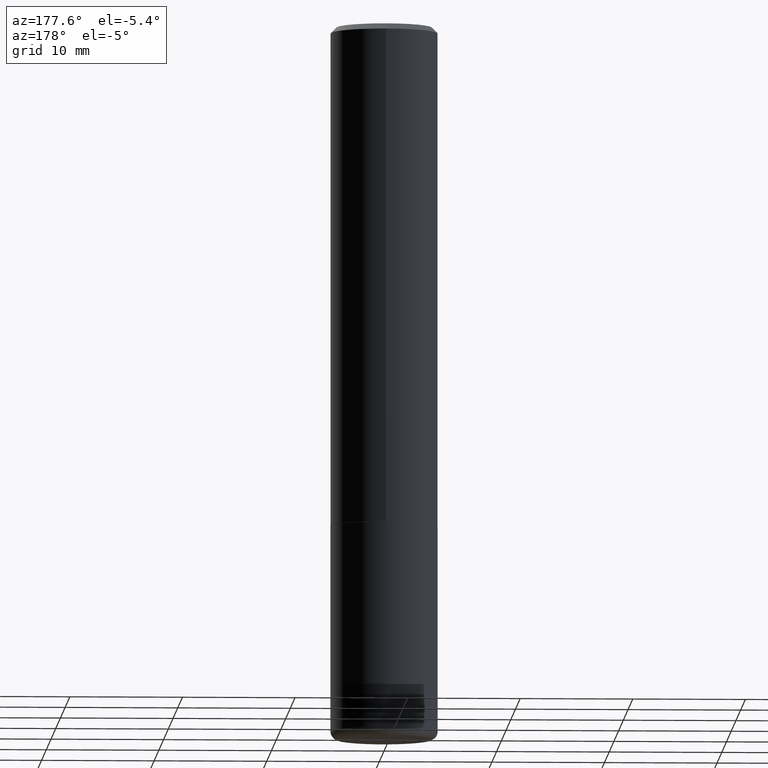
[diagram: clean part render]
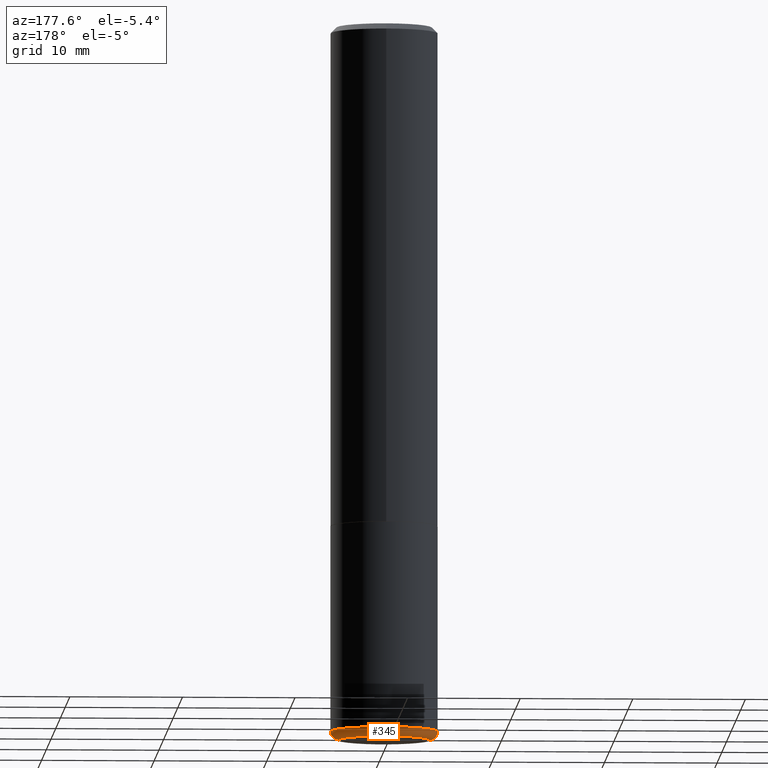
[diagram: same view with one face highlighted and labeled with its STEP entity id]
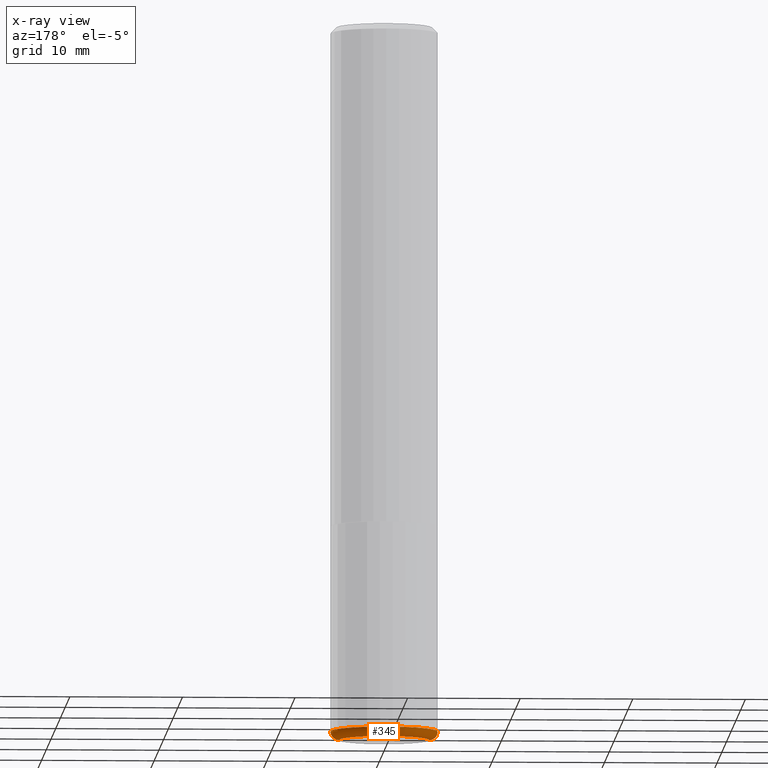
[diagram: x-ray of the same camera — body ghosted, the highlighted face saturated]
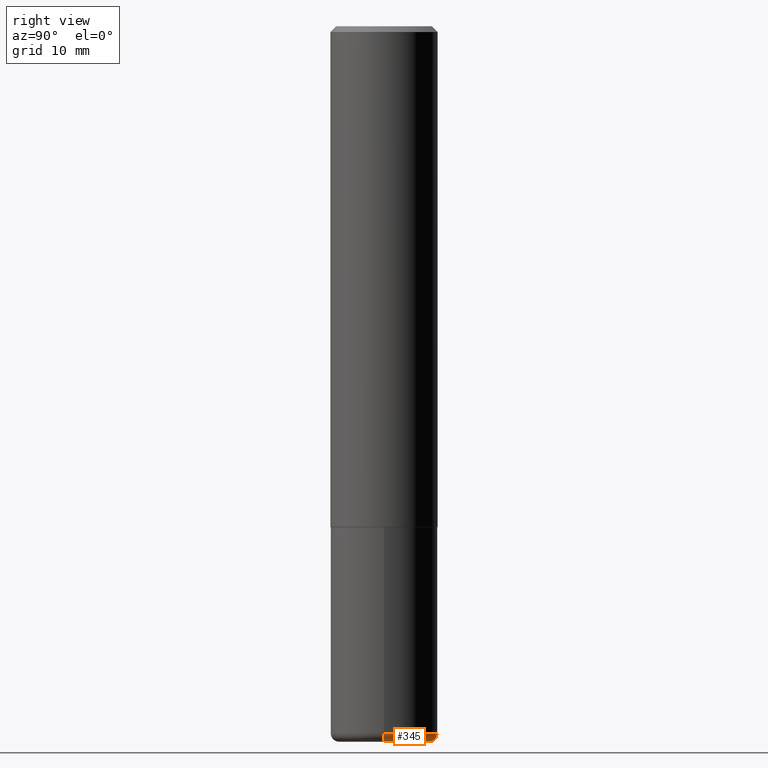
[diagram: same view with one face highlighted and labeled with its STEP entity id]
A machine part, auxiliary view. The second image highlights one B-rep face of the part: STEP entity #345.
The next image is the same camera in x-ray: the body ghosted, the highlighted face saturated — about 0% of this face is hidden behind the body in this view.
A second angle (right view) of the same face is appended — the face is thin or edge-on in the first view.
In plain terms, the highlighted toroidal blend (fillet) surface has major radius 4.0005 mm and minor (blend) radius 0.762 mm.
Its self-contained STEP definition (entity closure, byte-faithful):
#1 = DIRECTION ( 'NONE',  ( 7.105427357601001859E-15, 1.000000000000000000, -3.491481338843145583E-15 ) ) ;
#4 = ORIENTED_EDGE ( 'NONE', *, *, #375, .F. ) ;
#12 = EDGE_CURVE ( 'NONE', #286, #237, #184, .T. ) ;
#24 = DIRECTION ( 'NONE',  ( 1.000000000000000000, -6.982962677686269077E-15, 4.883557194083113462E-29 ) ) ;
#31 = AXIS2_PLACEMENT_3D ( 'NONE', #157, #123, #404 ) ;
#32 = VERTEX_POINT ( 'NONE', #151 ) ;
#39 = CARTESIAN_POINT ( 'NONE',  ( 0.1575000000000000289, -9.828519968843451634E-15, -2.500000000000000000 ) ) ;
#54 = EDGE_CURVE ( 'NONE', #286, #32, #409, .T. ) ;
#57 = CARTESIAN_POINT ( 'NONE',  ( 0.1575000000000000289, -9.723775528678158264E-15, -2.470000000000000195 ) ) ;
#119 = DIRECTION ( 'NONE',  ( -2.445468806185136597E-29, 3.491481338843145583E-15, 1.000000000000000000 ) ) ;
#120 = DIRECTION ( 'NONE',  ( -6.982962677686266711E-15, -1.000000000000000000, 3.491481338843145583E-15 ) ) ;
#123 = DIRECTION ( 'NONE',  ( -2.445468806185136597E-29, 3.491481338843145583E-15, 1.000000000000000000 ) ) ;
#125 = DIRECTION ( 'NONE',  ( 1.000000000000000000, -6.982962677686269077E-15, 0.000000000000000000 ) ) ;
#135 = DIRECTION ( 'NONE',  ( -1.000000000000000000, 7.105427357601001859E-15, 0.000000000000000000 ) ) ;
#151 = CARTESIAN_POINT ( 'NONE',  ( -0.1575000000000000289, -7.450644907839044743E-15, -2.500000000000000000 ) ) ;
#157 = CARTESIAN_POINT ( 'NONE',  ( 6.113672015462842613E-29, -8.728703347107864943E-15, -2.500000000000000000 ) ) ;
#160 = CARTESIAN_POINT ( 'NONE',  ( 6.040307951277287977E-29, -8.623958906942569995E-15, -2.470000000000000195 ) ) ;
#163 = ORIENTED_EDGE ( 'NONE', *, *, #12, .F. ) ;
#184 = CIRCLE ( 'NONE', #205, 0.02999999999999995379 ) ;
#203 = ORIENTED_EDGE ( 'NONE', *, *, #327, .T. ) ;
#205 = AXIS2_PLACEMENT_3D ( 'NONE', #57, #120, #280 ) ;
#213 = CARTESIAN_POINT ( 'NONE',  ( -0.1874999999999999722, -7.291691277392382147E-15, -2.470000000000000195 ) ) ;
#226 = DIRECTION ( 'NONE',  ( -2.445468806185136597E-29, 3.491481338843145583E-15, 1.000000000000000000 ) ) ;
#237 = VERTEX_POINT ( 'NONE', #305 ) ;
#261 = AXIS2_PLACEMENT_3D ( 'NONE', #346, #226, #24 ) ;
#280 = DIRECTION ( 'NONE',  ( 1.000000000000000000, -6.982962677686279332E-15, 0.000000000000000000 ) ) ;
#286 = VERTEX_POINT ( 'NONE', #39 ) ;
#294 = EDGE_LOOP ( 'NONE', ( #370, #203, #4, #163 ) ) ;
#296 = CIRCLE ( 'NONE', #364, 0.02999999999999995379 ) ;
#305 = CARTESIAN_POINT ( 'NONE',  ( 0.1874999999999999722, -9.933264409008746581E-15, -2.470000000000000195 ) ) ;
#306 = AXIS2_PLACEMENT_3D ( 'NONE', #160, #119, #125 ) ;
#314 = CIRCLE ( 'NONE', #306, 0.1874999999999999722 ) ;
#324 = FACE_OUTER_BOUND ( 'NONE', #294, .T. ) ;
#327 = EDGE_CURVE ( 'NONE', #32, #387, #296, .T. ) ;
#345 = ADVANCED_FACE ( 'NONE', ( #324 ), #371, .T. ) ;
#346 = CARTESIAN_POINT ( 'NONE',  ( 6.040307951277287977E-29, -8.623958906942569995E-15, -2.470000000000000195 ) ) ;
#351 = CARTESIAN_POINT ( 'NONE',  ( -0.1575000000000000289, -7.504854098120412392E-15, -2.470000000000000195 ) ) ;
#364 = AXIS2_PLACEMENT_3D ( 'NONE', #351, #1, #135 ) ;
#370 = ORIENTED_EDGE ( 'NONE', *, *, #54, .T. ) ;
#371 = TOROIDAL_SURFACE ( 'NONE', #261, 0.1575000000000000289, 0.02999999999999995379 ) ;
#375 = EDGE_CURVE ( 'NONE', #237, #387, #314, .T. ) ;
#387 = VERTEX_POINT ( 'NONE', #213 ) ;
#404 = DIRECTION ( 'NONE',  ( 1.000000000000000000, -6.982962677686267499E-15, 0.000000000000000000 ) ) ;
#409 = CIRCLE ( 'NONE', #31, 0.1575000000000000289 ) ;